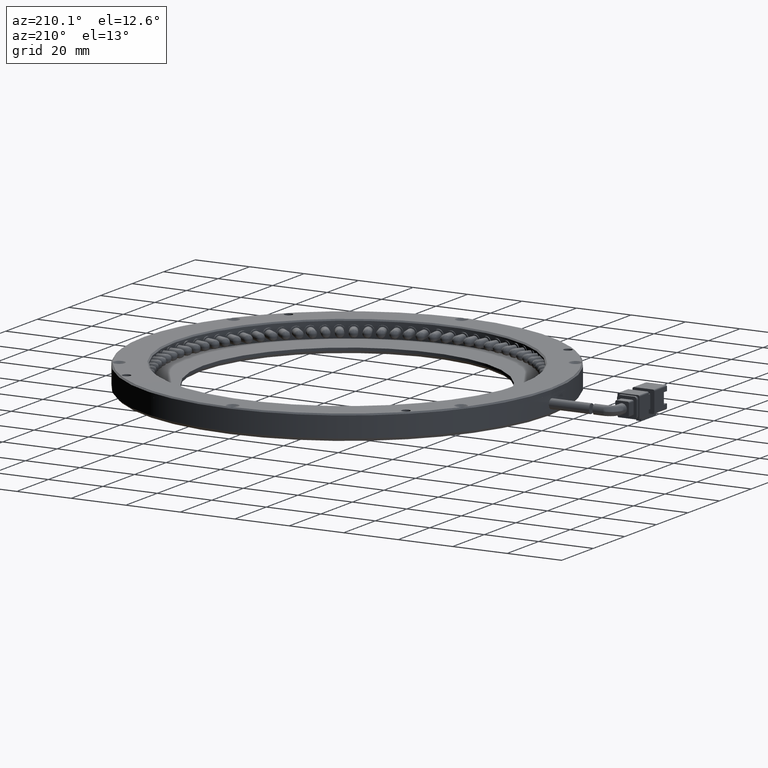
[diagram: clean part render]
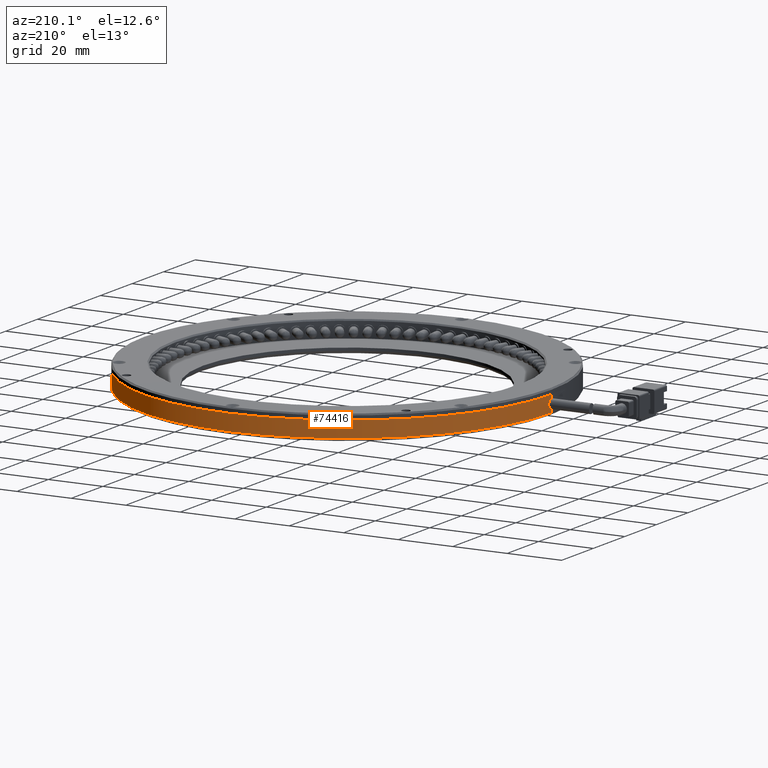
[diagram: same view with one face highlighted and labeled with its STEP entity id]
A machine part, auxiliary view. The second image highlights one B-rep face of the part: STEP entity #74416.
In plain terms, the highlighted cylindrical surface (partial cylindrical patch) has radius 75 mm, axis along (-0, -0, -1).
Its self-contained STEP definition (entity closure, byte-faithful):
#114 = B_SPLINE_CURVE_WITH_KNOTS ( 'NONE', 3,
 ( #40486, #46696, #10224, #52785, #16317, #58912, #22478, #65022, #28561, #71138 ),
 .UNSPECIFIED., .F., .F.,
 ( 4, 2, 2, 2, 4 ),
 ( 0.0000000000000000000, 0.0001630378163895703000, 0.0003260756327791406100, 0.0004891134491687109100, 0.0006521512655582812100 ),
 .UNSPECIFIED. ) ;
#164 = CARTESIAN_POINT ( 'NONE',  ( 85.81477244671998500, 2.165446640857760800, -0.6187330739377201500 ) ) ;
#489 = CARTESIAN_POINT ( 'NONE',  ( 85.73800014214573700, 4.653285474603203300, 1.128122048712245000 ) ) ;
#563 = CARTESIAN_POINT ( 'NONE',  ( 85.53827750510325200, 7.618272620792669000, -0.3127182383159786700 ) ) ;
#573 = ORIENTED_EDGE ( 'NONE', *, *, #14319, .T. ) ;
#737 = EDGE_CURVE ( 'NONE', #58135, #10843, #65007, .T. ) ;
#772 = CARTESIAN_POINT ( 'NONE',  ( 85.71165016811922000, 5.170246532691408000, 1.916150646992546400 ) ) ;
#856 = CARTESIAN_POINT ( 'NONE',  ( -64.17760152284266400, 1.211546039022340900, -1.250000000000065300 ) ) ;
#922 = EDGE_LOOP ( 'NONE', ( #63109, #7438, #54793, #67659, #46161, #46583, #573, #60451, #67471, #56180 ) ) ;
#1013 = CARTESIAN_POINT ( 'NONE',  ( 85.70550861730686200, 5.282591283686916700, -0.6652447018446749900 ) ) ;
#1101 = DIRECTION ( 'NONE',  ( -0.0000000000000000000, -0.0000000000000000000, -1.000000000000000000 ) ) ;
#1107 = CARTESIAN_POINT ( 'NONE',  ( -64.15718569520919300, 2.845784040264265800, 0.2705739323350450600 ) ) ;
#1305 = CARTESIAN_POINT ( 'NONE',  ( 10.82239847715735200, 1.095939086294420100, 1.881266926062272500 ) ) ;
#1360 = CARTESIAN_POINT ( 'NONE',  ( -64.17649974751833500, 1.554441329128374300, 2.204396376914379700 ) ) ;
#1553 = DIRECTION ( 'NONE',  ( 0.0000000000000000000, 0.0000000000000000000, 1.000000000000000000 ) ) ;
#1980 = ORIENTED_EDGE ( 'NONE', *, *, #59055, .T. ) ;
#2165 = CARTESIAN_POINT ( 'NONE',  ( 85.55198300067344500, 7.459051292020888000, -0.6652447018446611100 ) ) ;
#2300 = AXIS2_PLACEMENT_3D ( 'NONE', #50641, #14158, #56712 ) ;
#2699 = CARTESIAN_POINT ( 'NONE',  ( 85.68236644346437500, 5.676920768953632300, 1.150557925380190300 ) ) ;
#2800 = CARTESIAN_POINT ( 'NONE',  ( 85.55198300067344500, 7.459051292020880900, 0.8696390190855857200 ) ) ;
#2942 = B_SPLINE_CURVE_WITH_KNOTS ( 'NONE', 3,
 ( #30748, #48379, #6619, #49165, #12677, #55278, #18840, #61404 ),
 .UNSPECIFIED., .F., .F.,
 ( 4, 2, 2, 4 ),
 ( 0.0000000000000000000, 0.0002631081875671897100, 0.0005262163751343794300, 0.001052432750268758900 ),
 .UNSPECIFIED. ) ;
#2995 = LINE ( 'NONE', #25401, #63893 ) ;
#3256 = ORIENTED_EDGE ( 'NONE', *, *, #23365, .T. ) ;
#3352 = AXIS2_PLACEMENT_3D ( 'NONE', #53502, #17049, #59615 ) ;
#3556 = CARTESIAN_POINT ( 'NONE',  ( 85.79983291384401400, 2.935592665736297800, 3.499999999999955600 ) ) ;
#3559 = CARTESIAN_POINT ( 'NONE',  ( 85.58624266238298600, 7.043007074514176400, 1.178834870566936500 ) ) ;
#3994 = VERTEX_POINT ( 'NONE', #2165 ) ;
#4004 = CARTESIAN_POINT ( 'NONE',  ( 85.62597265482789100, 6.520449776774204200, 1.335416441849464700 ) ) ;
#4082 = CARTESIAN_POINT ( 'NONE',  ( 85.75446820164101800, 4.287722699461308000, -0.2196701746464283800 ) ) ;
#4192 = CARTESIAN_POINT ( 'NONE',  ( 85.48282974726120600, 8.225442838419969100, -0.4546932816000492900 ) ) ;
#4331 = EDGE_CURVE ( 'NONE', #10813, #69336, #67318, .T. ) ;
#4558 = AXIS2_PLACEMENT_3D ( 'NONE', #46893, #71340, #24002 ) ;
#4848 = CARTESIAN_POINT ( 'NONE',  ( 85.74109641400249900, 4.587171939469059500, 0.4916234151908922500 ) ) ;
#4944 = ORIENTED_EDGE ( 'NONE', *, *, #46761, .T. ) ;
#5084 = CARTESIAN_POINT ( 'NONE',  ( 85.71009021527021300, 5.200323804442635200, -0.3207454181537956500 ) ) ;
#5101 = EDGE_CURVE ( 'NONE', #71255, #6256, #65480, .T. ) ;
#5144 = CARTESIAN_POINT ( 'NONE',  ( 85.82039042256055000, 1.644759783096986900, -0.6187330739377242500 ) ) ;
#5192 = ORIENTED_EDGE ( 'NONE', *, *, #68583, .T. ) ;
#5295 = CARTESIAN_POINT ( 'NONE',  ( 85.52036745981722300, 7.820080096712868700, 0.2467743657567214600 ) ) ;
#5364 = VERTEX_POINT ( 'NONE', #77075 ) ;
#5440 = ORIENTED_EDGE ( 'NONE', *, *, #51326, .F. ) ;
#5558 = CARTESIAN_POINT ( 'NONE',  ( 85.58342432324457100, 7.078349063358267300, 1.412979274396820600 ) ) ;
#6256 = VERTEX_POINT ( 'NONE', #32475 ) ;
#6448 = ORIENTED_EDGE ( 'NONE', *, *, #41639, .F. ) ;
#6508 = CARTESIAN_POINT ( 'NONE',  ( 85.62634100142418000, 6.515365515925713800, 1.230104135364652700 ) ) ;
#6511 = VERTEX_POINT ( 'NONE', #5144 ) ;
#6619 = CARTESIAN_POINT ( 'NONE',  ( 85.69374825315824800, 5.487746691875480000, -0.3201846108358007400 ) ) ;
#6647 = CARTESIAN_POINT ( 'NONE',  ( 85.76380396376370600, 4.060023050997011200, 0.7848510675663845600 ) ) ;
#6652 = CARTESIAN_POINT ( 'NONE',  ( 85.74084618631185600, 4.592577370694245400, 0.8144882120009927500 ) ) ;
#6717 = CARTESIAN_POINT ( 'NONE',  ( 85.52422649467446500, 7.777217999458087200, -0.2293130562746435500 ) ) ;
#6864 = VERTEX_POINT ( 'NONE', #46443 ) ;
#6990 = LINE ( 'NONE', #3556, #23139 ) ;
#7248 = CARTESIAN_POINT ( 'NONE',  ( -64.15744734107639100, 2.834679593530885700, 0.7288483726947201400 ) ) ;
#7438 = ORIENTED_EDGE ( 'NONE', *, *, #50314, .T. ) ;
#7449 = DIRECTION ( 'NONE',  ( -3.099835203338822200E-013, 1.000000000000000000, 6.805898437415671900E-015 ) ) ;
#7484 = VERTEX_POINT ( 'NONE', #11196 ) ;
#7511 = CARTESIAN_POINT ( 'NONE',  ( -64.17760152284266400, 1.095939086294413800, 2.249999999999931600 ) ) ;
#7753 = DIRECTION ( 'NONE',  ( -0.0000000000000000000, -0.0000000000000000000, -1.000000000000000000 ) ) ;
#7919 = CARTESIAN_POINT ( 'NONE',  ( 85.68150632212675100, 5.690933390452384400, 1.090569251643721100 ) ) ;
#8038 = EDGE_CURVE ( 'NONE', #78612, #52757, #48639, .T. ) ;
#8232 = VERTEX_POINT ( 'NONE', #22075 ) ;
#8334 = CARTESIAN_POINT ( 'NONE',  ( 85.51475269276178900, 7.882117814465390300, 0.04405762373675878300 ) ) ;
#8799 = CARTESIAN_POINT ( 'NONE',  ( 85.68649360600751700, 5.609017959873675400, 1.319685156415308900 ) ) ;
#9039 = B_SPLINE_CURVE_WITH_KNOTS ( 'NONE', 3,
 ( #43127, #856, #49541, #13064, #55633, #19228, #61792, #25320, #67858, #31410, #73965, #37525, #1107, #43673, #7248, #49785, #13334, #55903, #19477, #62029, #25590, #68110, #31664, #74234, #37785, #1360, #43936, #7511 ),
 .UNSPECIFIED., .F., .F.,
 ( 4, 2, 2, 2, 2, 2, 2, 2, 2, 2, 2, 2, 2, 4 ),
 ( 0.005470357491635789700, 0.005812254888678368100, 0.006154152285720946400, 0.006496049682763525700, 0.006837947079806104000, 0.007521741873891260800, 0.008205536667976416600, 0.008547434065018996700, 0.008889331462061573300, 0.009231228859104153400, 0.009573126256146730100, 0.009915023653189308400, 0.01025692105023188700, 0.01094071584431704000 ),
 .UNSPECIFIED. ) ;
#9140 = EDGE_CURVE ( 'NONE', #17227, #55969, #2995, .T. ) ;
#9324 = ORIENTED_EDGE ( 'NONE', *, *, #44883, .T. ) ;
#9366 = EDGE_CURVE ( 'NONE', #49303, #45672, #23539, .T. ) ;
#9451 = CARTESIAN_POINT ( 'NONE',  ( 85.79176449676579400, 3.239337933448679200, 3.499999999999948900 ) ) ;
#9579 = CARTESIAN_POINT ( 'NONE',  ( 85.54793157312538200, 7.507465081779962200, 1.912926396741569300 ) ) ;
#9649 = CARTESIAN_POINT ( 'NONE',  ( 85.58216645370347900, 7.094070326340913700, 1.035373196568201100 ) ) ;
#9963 = EDGE_CURVE ( 'NONE', #69026, #3994, #72444, .T. ) ;
#10167 = CARTESIAN_POINT ( 'NONE',  ( 85.75921642377402100, 4.174017002276131400, -0.005171606683428008200 ) ) ;
#10224 = CARTESIAN_POINT ( 'NONE',  ( 85.52081281393418500, 7.815127352819761300, 1.241048167901908700 ) ) ;
#10274 = CARTESIAN_POINT ( 'NONE',  ( 85.51166927441561000, 7.916923086171308900, -0.6142956655598131900 ) ) ;
#10359 = CARTESIAN_POINT ( 'NONE',  ( 85.68447640247100600, 5.643783523934319000, 1.836020528911882300 ) ) ;
#10452 = CARTESIAN_POINT ( 'NONE',  ( 85.51410503318128100, 7.890077489507759400, 0.7441503104487929800 ) ) ;
#10506 = CARTESIAN_POINT ( 'NONE',  ( 85.51769994288605400, 7.849600237396815700, 1.137080879550713900 ) ) ;
#10731 = EDGE_LOOP ( 'NONE', ( #35460, #27213, #66482, #1980, #72557, #31885, #59051, #3256, #13104, #38547, #5192, #58852, #27510, #37329 ) ) ;
#10813 = VERTEX_POINT ( 'NONE', #16647 ) ;
#10843 = VERTEX_POINT ( 'NONE', #53394 ) ;
#11196 = CARTESIAN_POINT ( 'NONE',  ( 85.55657981451788900, 7.404832795536414400, 1.555685530713489800 ) ) ;
#11200 = CARTESIAN_POINT ( 'NONE',  ( -64.17760152284266400, 1.095939086294413800, 2.249999999999931600 ) ) ;
#11381 = CARTESIAN_POINT ( 'NONE',  ( 85.55657981451788900, 7.404832795536414400, 1.555685530713489800 ) ) ;
#11382 = CARTESIAN_POINT ( 'NONE',  ( 85.53569154040435800, 7.648174592361531400, 0.3789055607339342200 ) ) ;
#11490 = CIRCLE ( 'NONE', #3352, 75.00000000000001400 ) ;
#11640 = CARTESIAN_POINT ( 'NONE',  ( 85.58606086792164500, 7.045291019548590900, 1.276991541258582400 ) ) ;
#11657 = CARTESIAN_POINT ( 'NONE',  ( 85.58350968957468300, 7.078015308578138800, -0.6356882467442865900 ) ) ;
#11890 = VERTEX_POINT ( 'NONE', #8334 ) ;
#12677 = CARTESIAN_POINT ( 'NONE',  ( 85.67899586537868100, 5.732178499505995900, -0.2186353966747918700 ) ) ;
#12702 = CARTESIAN_POINT ( 'NONE',  ( 85.76408291473212800, 4.052953401268913700, 0.6254529725739557100 ) ) ;
#12711 = CARTESIAN_POINT ( 'NONE',  ( 85.74122283623991300, 4.584456916682782400, 0.6021971586204419900 ) ) ;
#12768 = CARTESIAN_POINT ( 'NONE',  ( 85.51588529690991400, 7.869688996189457200, -0.07597708798656095700 ) ) ;
#12937 = VERTEX_POINT ( 'NONE', #10506 ) ;
#13064 = CARTESIAN_POINT ( 'NONE',  ( -64.17631727402043400, 1.548862813064827400, -1.194213056580401900 ) ) ;
#13104 = ORIENTED_EDGE ( 'NONE', *, *, #54580, .T. ) ;
#13334 = CARTESIAN_POINT ( 'NONE',  ( -64.15921619028435400, 2.757076887694246600, 1.062369380701858200 ) ) ;
#13413 = CIRCLE ( 'NONE', #67202, 75.00000000000001400 ) ;
#13601 = CARTESIAN_POINT ( 'NONE',  ( 85.65214963128302400, 6.146517489965628300, 3.500000000000011100 ) ) ;
#13871 = CARTESIAN_POINT ( 'NONE',  ( 85.56333837768777100, 7.325270542858255900, 0.4473735952365120400 ) ) ;
#14058 = CARTESIAN_POINT ( 'NONE',  ( 10.82239847715735200, 1.095939086294420100, 1.532429716759989600 ) ) ;
#14158 = DIRECTION ( 'NONE',  ( -0.0000000000000000000, 6.804568988770635500E-015, -1.000000000000000000 ) ) ;
#14319 = EDGE_CURVE ( 'NONE', #8232, #24237, #68448, .T. ) ;
#14354 = CARTESIAN_POINT ( 'NONE',  ( 10.82239847715735200, 1.095939086294420100, -0.6187330739377263600 ) ) ;
#14393 = CARTESIAN_POINT ( 'NONE',  ( 85.57246421834504700, 7.214710487214031100, 0.4724769187422971400 ) ) ;
#14640 = EDGE_CURVE ( 'NONE', #48084, #60283, #17371, .T. ) ;
#14923 = CARTESIAN_POINT ( 'NONE',  ( 85.69339446705160400, 5.493177239584282400, 1.463997073509666300 ) ) ;
#15248 = CARTESIAN_POINT ( 'NONE',  ( 85.58568070910276000, 7.050107053887177100, 1.126573936929329500 ) ) ;
#15533 = VECTOR ( 'NONE', #1553, 1000.000000000000000 ) ;
#15682 = CARTESIAN_POINT ( 'NONE',  ( 85.51887240053424900, 7.837510290975521900, 1.838374444428891200 ) ) ;
#15756 = CARTESIAN_POINT ( 'NONE',  ( 85.56892395853370200, 7.257438082710971900, 0.9112647017991184500 ) ) ;
#16008 = CARTESIAN_POINT ( 'NONE',  ( 85.71046638832190500, 5.191947452107305200, -0.6652447018446755500 ) ) ;
#16168 = CARTESIAN_POINT ( 'NONE',  ( 10.82239847715735200, 1.095939086294420100, 1.137080879550663500 ) ) ;
#16197 = CARTESIAN_POINT ( 'NONE',  ( 85.61782358324288100, 6.631867412764506800, 1.628842765550401000 ) ) ;
#16261 = CARTESIAN_POINT ( 'NONE',  ( 85.76299132774001100, 4.080810903052869400, 0.3018867300238762300 ) ) ;
#16317 = CARTESIAN_POINT ( 'NONE',  ( 85.52787608819210200, 7.736197853643506800, 1.385067924659423500 ) ) ;
#16379 = CARTESIAN_POINT ( 'NONE',  ( 85.54212341058968100, 7.574844169265256600, -0.6652447018446604500 ) ) ;
#16465 = CARTESIAN_POINT ( 'NONE',  ( 85.66545761522813500, 5.946270426808838200, 1.633155076523562300 ) ) ;
#16564 = CARTESIAN_POINT ( 'NONE',  ( 85.48709745703423800, 8.180542651453643900, 0.5768355480302569400 ) ) ;
#16647 = CARTESIAN_POINT ( 'NONE',  ( -64.17760152284266400, 1.095939086294420100, -1.250000000000064400 ) ) ;
#17049 = DIRECTION ( 'NONE',  ( 0.0000000000000000000, 0.0000000000000000000, -1.000000000000000000 ) ) ;
#17227 = VERTEX_POINT ( 'NONE', #62798 ) ;
#17371 = CIRCLE ( 'NONE', #41765, 75.00000000000001400 ) ;
#17497 = CARTESIAN_POINT ( 'NONE',  ( 85.55382189115601900, 7.437417976715300600, 0.4277785539693462800 ) ) ;
#17570 = B_SPLINE_CURVE_WITH_KNOTS ( 'NONE', 3,
 ( #67768, #43293, #49447, #31312, #73863, #37431, #1013, #43570 ),
 .UNSPECIFIED., .F., .F.,
 ( 4, 2, 2, 4 ),
 ( 0.0000000000000000000, 0.0005431440541593563200, 0.0008147160812390319400, 0.001086288108318707700 ),
 .UNSPECIFIED. ) ;
#17776 = CARTESIAN_POINT ( 'NONE',  ( 85.60436376792317500, 6.811285033781914900, -0.5276803122504228900 ) ) ;
#17854 = ORIENTED_EDGE ( 'NONE', *, *, #36163, .F. ) ;
#18096 = VECTOR ( 'NONE', #33892, 1000.000000000000000 ) ;
#18104 = DIRECTION ( 'NONE',  ( -0.0000000000000000000, 9.009841873820301300E-015, -1.000000000000000000 ) ) ;
#18580 = CARTESIAN_POINT ( 'NONE',  ( 85.70987398692894000, 5.202764109759980800, 1.555685530713472500 ) ) ;
#18732 = CARTESIAN_POINT ( 'NONE',  ( 85.61327012385648100, 6.695071809826015600, -0.05342082314213781500 ) ) ;
#18840 = CARTESIAN_POINT ( 'NONE',  ( 85.65853093038289500, 6.051971680452366400, 0.08106064510655296200 ) ) ;
#18871 = CARTESIAN_POINT ( 'NONE',  ( 85.76302581473748900, 4.079917948819633500, 0.9414665052236703700 ) ) ;
#18873 = VERTEX_POINT ( 'NONE', #26105 ) ;
#18944 = CARTESIAN_POINT ( 'NONE',  ( 85.51475269276178900, 7.882117814465390300, 0.04405762373675878300 ) ) ;
#19228 = CARTESIAN_POINT ( 'NONE',  ( -64.17366216220651200, 1.871900513010396100, -1.072748805248875400 ) ) ;
#19290 = EDGE_CURVE ( 'NONE', #52757, #45473, #17570, .T. ) ;
#19477 = CARTESIAN_POINT ( 'NONE',  ( -64.16224778660425400, 2.614765466892625200, 1.376736934311823600 ) ) ;
#20039 = CIRCLE ( 'NONE', #39807, 75.00000000000001400 ) ;
#20220 = DIRECTION ( 'NONE',  ( -1.429874737131816000E-013, -1.000000000000000000, -6.756747938929662100E-015 ) ) ;
#20225 = DIRECTION ( 'NONE',  ( 0.0000000000000000000, 0.0000000000000000000, 1.000000000000000000 ) ) ;
#20502 = DIRECTION ( 'NONE',  ( -1.527713141176907900E-013, -1.000000000000000000, -6.804452834519024300E-015 ) ) ;
#20539 = CARTESIAN_POINT ( 'NONE',  ( 85.59812002527483800, 6.892545738829116300, 0.5864729204963087300 ) ) ;
#20626 = DIRECTION ( 'NONE',  ( -0.0000000000000000000, -0.0000000000000000000, -1.000000000000000000 ) ) ;
#21092 = CARTESIAN_POINT ( 'NONE',  ( 85.70297478753252600, 5.327081371156655400, 1.546056791929100400 ) ) ;
#21847 = CARTESIAN_POINT ( 'NONE',  ( 85.49269615595950700, 8.121233534810762900, 1.650374865286688500 ) ) ;
#21921 = CARTESIAN_POINT ( 'NONE',  ( 85.55198300067344500, 7.459051292020880900, 0.8696390190855857200 ) ) ;
#22075 = CARTESIAN_POINT ( 'NONE',  ( 85.74122283623991300, 4.584456916682782400, 0.6021971586204419900 ) ) ;
#22085 = CARTESIAN_POINT ( 'NONE',  ( 85.69825760274845500, 5.410950155728764700, 1.901112523295561200 ) ) ;
#22298 = DIRECTION ( 'NONE',  ( 1.527713141176907900E-013, -1.000000000000000000, -6.953349932873700500E-015 ) ) ;
#22330 = CARTESIAN_POINT ( 'NONE',  ( 85.59918659522907100, 6.878641428093961200, 1.825291350577643100 ) ) ;
#22408 = CARTESIAN_POINT ( 'NONE',  ( 85.76408291473212800, 4.052953401268913700, 0.6254529725739557100 ) ) ;
#22478 = CARTESIAN_POINT ( 'NONE',  ( 85.53851502967748400, 7.615482848410752400, 1.498635839079678300 ) ) ;
#22584 = FACE_OUTER_BOUND ( 'NONE', #74444, .T. ) ;
#22622 = CARTESIAN_POINT ( 'NONE',  ( 85.65278493696352800, 6.137422005559373300, 1.324651496669644300 ) ) ;
#22712 = CARTESIAN_POINT ( 'NONE',  ( 85.46735494845359000, 8.385248726812310600, 0.3052451313797247000 ) ) ;
#22966 = CARTESIAN_POINT ( 'NONE',  ( 85.63025414252011600, 6.461079415330958800, 0.2417320423413817600 ) ) ;
#22971 = CARTESIAN_POINT ( 'NONE',  ( 85.55749214440480400, 7.394016137883291200, 1.916150646992560400 ) ) ;
#23139 = VECTOR ( 'NONE', #27461, 1000.000000000000000 ) ;
#23365 = EDGE_CURVE ( 'NONE', #18873, #56909, #25660, .T. ) ;
#23539 = B_SPLINE_CURVE_WITH_KNOTS ( 'NONE', 3,
 ( #52158, #9579, #39867, #15682, #58277, #21847, #64385, #27928, #70489, #34027 ),
 .UNSPECIFIED., .F., .F.,
 ( 4, 2, 2, 2, 4 ),
 ( 0.0000000000000000000, 0.0003388901469546860000, 0.0006777802939093746000, 0.001016670440864063000, 0.001355560587818751800 ),
 .UNSPECIFIED. ) ;
#23895 = CARTESIAN_POINT ( 'NONE',  ( 85.62143490545028600, 6.583157864560703800, -0.3495414962016575900 ) ) ;
#24002 = DIRECTION ( 'NONE',  ( -1.000000000000000000, 0.0000000000000000000, 0.0000000000000000000 ) ) ;
#24237 = VERTEX_POINT ( 'NONE', #29873 ) ;
#24477 = FACE_BOUND ( 'NONE', #10731, .T. ) ;
#24773 = CARTESIAN_POINT ( 'NONE',  ( 85.55339383942475700, 7.442742274676379400, -0.3396633064957795300 ) ) ;
#24847 = CARTESIAN_POINT ( 'NONE',  ( 85.58911290672195100, 7.008906390167959800, -0.2704685028220033500 ) ) ;
#24866 = EDGE_CURVE ( 'NONE', #78418, #8232, #40415, .T. ) ;
#24926 = EDGE_CURVE ( 'NONE', #6511, #48084, #62198, .T. ) ;
#24973 = CARTESIAN_POINT ( 'NONE',  ( 85.75694861392193500, 4.230089149045356000, 1.395247904257803000 ) ) ;
#25303 = CARTESIAN_POINT ( 'NONE',  ( 85.65214963128302400, 6.146517489965676300, -0.2466400506818331500 ) ) ;
#25320 = CARTESIAN_POINT ( 'NONE',  ( -64.17007602798992100, 2.162623009860407100, -0.8920349465196285600 ) ) ;
#25401 = CARTESIAN_POINT ( 'NONE',  ( 85.77545153947657800, 3.749208133556743800, 3.499999999999952000 ) ) ;
#25590 = CARTESIAN_POINT ( 'NONE',  ( -64.16603006302712200, 2.415880627403558000, 1.654812266917435200 ) ) ;
#25660 = B_SPLINE_CURVE_WITH_KNOTS ( 'NONE', 3,
 ( #56678, #13871, #14393, #56949, #20539, #63068, #26646, #69168, #32710, #75288 ),
 .UNSPECIFIED., .F., .F.,
 ( 4, 2, 2, 2, 4 ),
 ( 0.0000000000000000000, 0.0003405568085651301000, 0.0006811136171302602100, 0.001021670425695390300, 0.001362227234260520400 ),
 .UNSPECIFIED. ) ;
#25711 = EDGE_CURVE ( 'NONE', #26147, #69038, #53601, .T. ) ;
#26047 = VECTOR ( 'NONE', #20225, 1000.000000000000000 ) ;
#26049 = EDGE_CURVE ( 'NONE', #45701, #38571, #26568, .T. ) ;
#26105 = CARTESIAN_POINT ( 'NONE',  ( 85.55382189115601900, 7.437417976715300600, 0.4277785539693462800 ) ) ;
#26147 = VERTEX_POINT ( 'NONE', #70497 ) ;
#26155 = CARTESIAN_POINT ( 'NONE',  ( 85.65214963128302400, 6.146517489965628300, 0.2301041353646483800 ) ) ;
#26474 = DIRECTION ( 'NONE',  ( -0.0000000000000000000, -0.0000000000000000000, -1.000000000000000000 ) ) ;
#26544 = CARTESIAN_POINT ( 'NONE',  ( 10.82239847715735200, 1.095939086294420100, -0.6187330739377272500 ) ) ;
#26568 = LINE ( 'NONE', #37779, #73171 ) ;
#26646 = CARTESIAN_POINT ( 'NONE',  ( 85.61892491159537100, 6.617014109375034500, 0.7923754904449682400 ) ) ;
#26969 = ORIENTED_EDGE ( 'NONE', *, *, #63890, .T. ) ;
#26971 = ORIENTED_EDGE ( 'NONE', *, *, #48463, .T. ) ;
#27139 = CARTESIAN_POINT ( 'NONE',  ( 85.70987398692894000, 5.202764109759980800, 1.555685530713472500 ) ) ;
#27213 = ORIENTED_EDGE ( 'NONE', *, *, #9963, .T. ) ;
#27382 = B_SPLINE_CURVE_WITH_KNOTS ( 'NONE', 3,
 ( #34277, #4004, #52671, #16197, #58774, #22330, #64882, #28429, #70993, #34539 ),
 .UNSPECIFIED., .F., .F.,
 ( 4, 2, 2, 2, 4 ),
 ( 0.0000000000000000000, 0.0003112414288711303600, 0.0006224828577422607300, 0.0009337242866133911500, 0.001244965715484521500 ),
 .UNSPECIFIED. ) ;
#27461 = DIRECTION ( 'NONE',  ( -0.0000000000000000000, -0.0000000000000000000, -1.000000000000000000 ) ) ;
#27510 = ORIENTED_EDGE ( 'NONE', *, *, #65310, .T. ) ;
#27524 = CARTESIAN_POINT ( 'NONE',  ( 85.76408291473212800, 4.052953401268913700, 0.6254529725739557100 ) ) ;
#27928 = CARTESIAN_POINT ( 'NONE',  ( 85.47593712001200600, 8.296763544746991000, 1.359307089440018100 ) ) ;
#28235 = CARTESIAN_POINT ( 'NONE',  ( 85.72736683940286200, 4.873277809031983500, -0.6288183887472862400 ) ) ;
#28429 = CARTESIAN_POINT ( 'NONE',  ( 85.57499151202786400, 7.183662032832719600, 1.905729125419449100 ) ) ;
#28561 = CARTESIAN_POINT ( 'NONE',  ( 85.55190220552968600, 7.460243029796309600, 1.553691176691353900 ) ) ;
#28692 = CARTESIAN_POINT ( 'NONE',  ( 85.64846584938456400, 6.200803590560445500, 1.090569251643724400 ) ) ;
#28784 = CARTESIAN_POINT ( 'NONE',  ( 85.46454834682926100, 8.413688933989346800, 0.07894134466700925000 ) ) ;
#29223 = CARTESIAN_POINT ( 'NONE',  ( 85.73831648915870600, 4.646407030796770400, 0.1678306298991276100 ) ) ;
#29435 = CARTESIAN_POINT ( 'NONE',  ( 85.51475269276180300, 7.882117814465386700, 0.09833294523471444700 ) ) ;
#29831 = VERTEX_POINT ( 'NONE', #27524 ) ;
#29873 = CARTESIAN_POINT ( 'NONE',  ( 85.70384475185316800, 5.311268706839667800, -0.3280353995190593000 ) ) ;
#29947 = CARTESIAN_POINT ( 'NONE',  ( 85.63025414252013000, 6.461079415330900100, -0.2001284227748541300 ) ) ;
#30080 = EDGE_CURVE ( 'NONE', #40221, #76967, #34344, .T. ) ;
#30310 = CARTESIAN_POINT ( 'NONE',  ( 10.82239847715735200, 1.095939086294420100, 3.499999999999937400 ) ) ;
#30427 = VERTEX_POINT ( 'NONE', #39901 ) ;
#30512 = CARTESIAN_POINT ( 'NONE',  ( 85.71573886229981600, 5.095818791126586900, 1.551562638756804200 ) ) ;
#30591 = VECTOR ( 'NONE', #26474, 1000.000000000000000 ) ;
#30748 = CARTESIAN_POINT ( 'NONE',  ( 85.70384475185316800, 5.311268706839667800, -0.3280353995190593000 ) ) ;
#30781 = CARTESIAN_POINT ( 'NONE',  ( 85.72132731953095700, 4.989299713287124400, 1.524176576279314000 ) ) ;
#30910 = CARTESIAN_POINT ( 'NONE',  ( 85.55840858489298700, 7.383131876120323500, -0.3396633064957805800 ) ) ;
#31049 = CARTESIAN_POINT ( 'NONE',  ( 85.74258159485586400, 4.558276619965700300, 1.746677760756298200 ) ) ;
#31098 = CYLINDRICAL_SURFACE ( 'NONE', #4558, 75.00000000000001400 ) ;
#31312 = CARTESIAN_POINT ( 'NONE',  ( 85.68481646236915600, 5.637461681645296700, -0.6067286376974057000 ) ) ;
#31410 = CARTESIAN_POINT ( 'NONE',  ( -64.16472828938128700, 2.494826370910634400, -0.5759807946237031100 ) ) ;
#31515 = EDGE_CURVE ( 'NONE', #12937, #7484, #114, .T. ) ;
#31664 = CARTESIAN_POINT ( 'NONE',  ( -64.17005402205187200, 2.164134769224698400, 1.890845348924354000 ) ) ;
#31885 = ORIENTED_EDGE ( 'NONE', *, *, #64862, .T. ) ;
#32192 = EDGE_CURVE ( 'NONE', #55969, #32869, #35377, .T. ) ;
#32475 = CARTESIAN_POINT ( 'NONE',  ( 85.64846584938456400, 6.200803590560445500, 1.090569251643724400 ) ) ;
#32599 = DIRECTION ( 'NONE',  ( 0.0000000000000000000, -1.000000000000000000, -6.662783750647585300E-015 ) ) ;
#32710 = CARTESIAN_POINT ( 'NONE',  ( 85.62734647348361200, 6.501487059391680000, 1.115523598219718000 ) ) ;
#32869 = VERTEX_POINT ( 'NONE', #69316 ) ;
#33892 = DIRECTION ( 'NONE',  ( 0.0000000000000000000, 0.0000000000000000000, 1.000000000000000000 ) ) ;
#34022 = B_SPLINE_CURVE_WITH_KNOTS ( 'NONE', 3,
 ( #12702, #6647, #18871, #61427, #24973, #67516, #31049, #73598, #37200, #772 ),
 .UNSPECIFIED., .F., .F.,
 ( 4, 2, 2, 2, 4 ),
 ( 1.301042606982605500E-018, 0.0004718343931649071800, 0.0009436687863298130500, 0.001415503179494718800, 0.001887337572659624800 ),
 .UNSPECIFIED. ) ;
#34027 = CARTESIAN_POINT ( 'NONE',  ( 85.47090221431160700, 8.348586175741669300, 1.137080879550714100 ) ) ;
#34215 = ORIENTED_EDGE ( 'NONE', *, *, #26049, .T. ) ;
#34247 = LINE ( 'NONE', #9451, #18096 ) ;
#34277 = CARTESIAN_POINT ( 'NONE',  ( 85.62634100142418000, 6.515365515925713800, 1.230104135364652700 ) ) ;
#34344 = B_SPLINE_CURVE_WITH_KNOTS ( 'NONE', 3,
 ( #61308, #55173, #18732, #24847, #67396, #30910 ),
 .UNSPECIFIED., .F., .F.,
 ( 4, 2, 4 ),
 ( 0.0000000000000000000, 0.0005626812746980399100, 0.001125362549396079800 ),
 .UNSPECIFIED. ) ;
#34348 = CARTESIAN_POINT ( 'NONE',  ( 85.74156195678047300, 4.577771682309554900, -0.4965976644851552400 ) ) ;
#34539 = CARTESIAN_POINT ( 'NONE',  ( 85.55749214440480400, 7.394016137883291200, 1.916150646992560400 ) ) ;
#35077 = ORIENTED_EDGE ( 'NONE', *, *, #4331, .F. ) ;
#35219 = CARTESIAN_POINT ( 'NONE',  ( 10.82239847715735200, 1.095939086294420100, 1.881266926062278500 ) ) ;
#35338 = CARTESIAN_POINT ( 'NONE',  ( 85.73049999876060700, 4.808097012297963600, -0.1226339608918013000 ) ) ;
#35377 = CIRCLE ( 'NONE', #62632, 75.00000000000001400 ) ;
#35460 = ORIENTED_EDGE ( 'NONE', *, *, #62275, .T. ) ;
#35562 = CARTESIAN_POINT ( 'NONE',  ( 85.51475269276178900, 7.882117814465390300, 0.04405762373675878300 ) ) ;
#35829 = CARTESIAN_POINT ( 'NONE',  ( 85.57184834604321100, 7.221443879377149600, 1.530630557235648000 ) ) ;
#35836 = EDGE_CURVE ( 'NONE', #6256, #45908, #43007, .T. ) ;
#35838 = CARTESIAN_POINT ( 'NONE',  ( 85.56019737072298900, 7.362580187775525300, -0.6705929790179664400 ) ) ;
#36163 = EDGE_CURVE ( 'NONE', #69336, #66220, #11490, .T. ) ;
#36461 = DIRECTION ( 'NONE',  ( -1.000000000000000000, 0.0000000000000000000, 0.0000000000000000000 ) ) ;
#36932 = CARTESIAN_POINT ( 'NONE',  ( 85.73361178171110500, 4.744528867741007800, 1.319627264999895000 ) ) ;
#36995 = CARTESIAN_POINT ( 'NONE',  ( 85.54834886660899000, 7.501854481231997200, -0.3356100839878791200 ) ) ;
#37200 = CARTESIAN_POINT ( 'NONE',  ( 85.72037207097453400, 5.009930506777845200, 1.905631102326019700 ) ) ;
#37329 = ORIENTED_EDGE ( 'NONE', *, *, #25711, .T. ) ;
#37431 = CARTESIAN_POINT ( 'NONE',  ( 85.70043691755242300, 5.372293763320101300, -0.6590222359865015600 ) ) ;
#37525 = CARTESIAN_POINT ( 'NONE',  ( -64.15829563789961300, 2.799797534432990600, 0.04030926949232197000 ) ) ;
#37779 = CARTESIAN_POINT ( 'NONE',  ( 85.81477244671998500, 2.165446640857727500, 3.499999999999945800 ) ) ;
#37785 = CARTESIAN_POINT ( 'NONE',  ( -64.17365622032254200, 1.872482464408237000, 2.072467236856808900 ) ) ;
#37874 = CARTESIAN_POINT ( 'NONE',  ( -64.17760152284266400, 1.095939086294420100, 3.499999999999937400 ) ) ;
#38050 = EDGE_CURVE ( 'NONE', #65834, #17227, #54799, .T. ) ;
#38234 = CARTESIAN_POINT ( 'NONE',  ( 85.82039042256055000, 1.644759783096986900, 3.499999999999940900 ) ) ;
#38534 = CARTESIAN_POINT ( 'NONE',  ( 85.77545153947657800, 3.749208133556766900, -0.6187330739377082700 ) ) ;
#38547 = ORIENTED_EDGE ( 'NONE', *, *, #9366, .T. ) ;
#38571 = VERTEX_POINT ( 'NONE', #164 ) ;
#38617 = ORIENTED_EDGE ( 'NONE', *, *, #66076, .T. ) ;
#38721 = FACE_BOUND ( 'NONE', #922, .T. ) ;
#39578 = B_SPLINE_CURVE_WITH_KNOTS ( 'NONE', 3,
 ( #11381, #47848, #72286, #35829, #78375, #41962, #5558, #48104, #11640, #54202 ),
 .UNSPECIFIED., .F., .F.,
 ( 4, 2, 2, 2, 4 ),
 ( 0.0000000000000000000, 0.0001392861036195307300, 0.0002785722072390614600, 0.0004178583108585921900, 0.0005571444144781229200 ),
 .UNSPECIFIED. ) ;
#39807 = AXIS2_PLACEMENT_3D ( 'NONE', #16168, #58745, #22298 ) ;
#39821 = CARTESIAN_POINT ( 'NONE',  ( 85.82039042256055000, 1.644759783097001300, 1.532429716759993200 ) ) ;
#39867 = CARTESIAN_POINT ( 'NONE',  ( 85.53824616566160400, 7.619289688687733700, 1.899507957399644700 ) ) ;
#39901 = CARTESIAN_POINT ( 'NONE',  ( 85.79983291384401400, 2.935592665736317400, 1.532429716760003800 ) ) ;
#40221 = VERTEX_POINT ( 'NONE', #22966 ) ;
#40415 = B_SPLINE_CURVE_WITH_KNOTS ( 'NONE', 3,
 ( #18580, #30512, #30781, #73348, #36932, #489, #43053, #6652, #49198, #12711 ),
 .UNSPECIFIED., .F., .F.,
 ( 4, 2, 2, 2, 4 ),
 ( 0.0000000000000000000, 0.0003183065607530491600, 0.0006366131215060983300, 0.0009549196822591474300, 0.001273226243012196700 ),
 .UNSPECIFIED. ) ;
#40418 = CARTESIAN_POINT ( 'NONE',  ( 85.75009714310805000, 4.388738571937572900, -0.3444714630378937200 ) ) ;
#40486 = CARTESIAN_POINT ( 'NONE',  ( 85.51769994288605400, 7.849600237396815700, 1.137080879550713900 ) ) ;
#40544 = CARTESIAN_POINT ( 'NONE',  ( 85.47510498030933900, 8.305354129492833700, -0.3654404759591365300 ) ) ;
#40725 = CARTESIAN_POINT ( 'NONE',  ( 85.55198300067344500, 7.459051292020880900, 0.8696390190855857200 ) ) ;
#41323 = DIRECTION ( 'NONE',  ( 8.525587643267346300E-014, 1.000000000000000000, 7.574959178432056600E-015 ) ) ;
#41445 = CARTESIAN_POINT ( 'NONE',  ( 85.81477244671998500, 2.165446640857727500, 1.532429716759996500 ) ) ;
#41457 = CARTESIAN_POINT ( 'NONE',  ( 85.82239847715736400, 1.095939086294429400, 3.499999999999937400 ) ) ;
#41467 = CARTESIAN_POINT ( 'NONE',  ( 85.71603764462942400, 5.090007912112359800, -0.2969013905976059000 ) ) ;
#41639 = EDGE_CURVE ( 'NONE', #46582, #57359, #77239, .T. ) ;
#41683 = CARTESIAN_POINT ( 'NONE',  ( 85.51580544391340800, 7.870568091706175600, 0.1525449449113665800 ) ) ;
#41765 = AXIS2_PLACEMENT_3D ( 'NONE', #14058, #56597, #20220 ) ;
#41868 = ORIENTED_EDGE ( 'NONE', *, *, #737, .T. ) ;
#41962 = CARTESIAN_POINT ( 'NONE',  ( 85.58131209924029300, 7.104777662482260500, 1.453454754232406100 ) ) ;
#42567 = VECTOR ( 'NONE', #20626, 1000.000000000000000 ) ;
#43007 = CIRCLE ( 'NONE', #2300, 75.00000000000001400 ) ;
#43053 = CARTESIAN_POINT ( 'NONE',  ( 85.73926044653839500, 4.626389355304830500, 1.023968722299614600 ) ) ;
#43111 = CARTESIAN_POINT ( 'NONE',  ( 85.53323718989507500, 7.675694090356714100, -0.2937632348092235600 ) ) ;
#43127 = CARTESIAN_POINT ( 'NONE',  ( -64.17760152284266400, 1.095939086294420100, -1.250000000000064400 ) ) ;
#43171 = CIRCLE ( 'NONE', #45726, 75.00000000000001400 ) ;
#43293 = CARTESIAN_POINT ( 'NONE',  ( 85.65955118150787900, 6.036855562714571000, -0.3924791085724572700 ) ) ;
#43570 = CARTESIAN_POINT ( 'NONE',  ( 85.71046638832190500, 5.191947452107305200, -0.6652447018446755500 ) ) ;
#43673 = CARTESIAN_POINT ( 'NONE',  ( -64.15718028118449500, 2.846016006774390000, 0.6129344644818458500 ) ) ;
#43829 = DIRECTION ( 'NONE',  ( -0.0000000000000000000, -0.0000000000000000000, -1.000000000000000000 ) ) ;
#43882 = DIRECTION ( 'NONE',  ( -0.0000000000000000000, -6.804568988770635500E-015, 1.000000000000000000 ) ) ;
#43936 = CARTESIAN_POINT ( 'NONE',  ( -64.17760152284269300, 1.327153028143808900, 2.249999999999933800 ) ) ;
#44137 = ORIENTED_EDGE ( 'NONE', *, *, #38050, .T. ) ;
#44411 = CARTESIAN_POINT ( 'NONE',  ( 85.63025414252013000, 6.461079415330900100, 3.500000000000021300 ) ) ;
#44578 = CARTESIAN_POINT ( 'NONE',  ( -64.17760152284266400, 1.095939086294420100, 3.499999999999937400 ) ) ;
#44883 = EDGE_CURVE ( 'NONE', #6864, #58135, #63712, .T. ) ;
#45281 = CARTESIAN_POINT ( 'NONE',  ( 85.68347951260267300, 5.658741578750908600, 1.208800489260948700 ) ) ;
#45473 = VERTEX_POINT ( 'NONE', #70480 ) ;
#45641 = AXIS2_PLACEMENT_3D ( 'NONE', #35219, #77786, #41323 ) ;
#45672 = VERTEX_POINT ( 'NONE', #59583 ) ;
#45701 = VERTEX_POINT ( 'NONE', #41445 ) ;
#45726 = AXIS2_PLACEMENT_3D ( 'NONE', #54515, #18104, #60668 ) ;
#45908 = VERTEX_POINT ( 'NONE', #7919 ) ;
#45909 = CARTESIAN_POINT ( 'NONE',  ( 85.82239847715736400, 1.095939086294429400, 1.881266926062278500 ) ) ;
#46113 = CARTESIAN_POINT ( 'NONE',  ( 85.58593526340877100, 7.046869031339358700, 1.230104135364656200 ) ) ;
#46161 = ORIENTED_EDGE ( 'NONE', *, *, #78207, .T. ) ;
#46402 = CARTESIAN_POINT ( 'NONE',  ( 85.54260023393537400, 7.569244266362255200, 0.8467972752543009300 ) ) ;
#46443 = CARTESIAN_POINT ( 'NONE',  ( 85.82239847715736400, 1.095939086294429400, 3.499999999999937400 ) ) ;
#46582 = VERTEX_POINT ( 'NONE', #37874 ) ;
#46583 = ORIENTED_EDGE ( 'NONE', *, *, #24866, .T. ) ;
#46613 = ORIENTED_EDGE ( 'NONE', *, *, #32192, .T. ) ;
#46643 = CARTESIAN_POINT ( 'NONE',  ( 85.75628390549923100, 4.244599473405182600, -0.1502553807688348800 ) ) ;
#46696 = CARTESIAN_POINT ( 'NONE',  ( 85.51910201506660800, 7.834093358703754900, 1.189900362365503800 ) ) ;
#46731 = VECTOR ( 'NONE', #7753, 1000.000000000000000 ) ;
#46752 = CARTESIAN_POINT ( 'NONE',  ( 85.50141026811215300, 8.028111842069469300, -0.5786663632736160900 ) ) ;
#46761 = EDGE_CURVE ( 'NONE', #10843, #30427, #6990, .T. ) ;
#46831 = CARTESIAN_POINT ( 'NONE',  ( 85.71165016811922000, 5.170246532691408000, 1.916150646992546400 ) ) ;
#46893 = CARTESIAN_POINT ( 'NONE',  ( 10.82239847715735200, 1.095939086294420100, 3.499999999999937400 ) ) ;
#46919 = CARTESIAN_POINT ( 'NONE',  ( 85.53310130919592800, 7.677901349634305800, 0.8185969920315044900 ) ) ;
#47389 = CARTESIAN_POINT ( 'NONE',  ( 85.74122283623991300, 4.584456916682782400, 0.6021971586204419900 ) ) ;
#47573 = VECTOR ( 'NONE', #77920, 1000.000000000000000 ) ;
#47656 = CARTESIAN_POINT ( 'NONE',  ( 85.70384475185316800, 5.311268706839667800, -0.3280353995190593000 ) ) ;
#47848 = CARTESIAN_POINT ( 'NONE',  ( 85.56051704384231000, 7.358192984523685500, 1.555685530713489100 ) ) ;
#47849 = CARTESIAN_POINT ( 'NONE',  ( 85.52384849178957900, 7.781397434964453000, 0.2865401357152470000 ) ) ;
#48084 = VERTEX_POINT ( 'NONE', #39821 ) ;
#48104 = CARTESIAN_POINT ( 'NONE',  ( 85.58575612820556000, 7.049137170891246900, 1.323725094349637000 ) ) ;
#48114 = CARTESIAN_POINT ( 'NONE',  ( 85.56814934549977600, 7.266977311126107800, -0.6667971167038820900 ) ) ;
#48224 = EDGE_CURVE ( 'NONE', #11890, #18873, #65151, .T. ) ;
#48379 = CARTESIAN_POINT ( 'NONE',  ( 85.69885401472720300, 5.399924552908485600, -0.3324894013550582200 ) ) ;
#48463 = EDGE_CURVE ( 'NONE', #60283, #66220, #60702, .T. ) ;
#48525 = CARTESIAN_POINT ( 'NONE',  ( -64.17760152284266400, 1.095939086294420100, -2.500000000000089700 ) ) ;
#48639 = LINE ( 'NONE', #13601, #46731 ) ;
#49120 = CARTESIAN_POINT ( 'NONE',  ( 85.71165016811922000, 5.170246532691408000, 1.916150646992546400 ) ) ;
#49165 = CARTESIAN_POINT ( 'NONE',  ( 85.68376969073294400, 5.654676998034846100, -0.2628993264571111200 ) ) ;
#49198 = CARTESIAN_POINT ( 'NONE',  ( 85.74116555206873600, 4.585687141944184500, 0.7086522643759404200 ) ) ;
#49269 = CARTESIAN_POINT ( 'NONE',  ( 85.52051227867689000, 7.818472509758554300, -0.1835392285245514600 ) ) ;
#49303 = VERTEX_POINT ( 'NONE', #22971 ) ;
#49447 = CARTESIAN_POINT ( 'NONE',  ( 85.66927740037265000, 5.888947719723438100, -0.5052194006168216900 ) ) ;
#49541 = CARTESIAN_POINT ( 'NONE',  ( -64.17733441740416800, 1.325220513060931600, -1.238656898499247200 ) ) ;
#49785 = CARTESIAN_POINT ( 'NONE',  ( -64.15846824452347600, 2.790082865065141200, 0.9532846633655034400 ) ) ;
#50196 = CARTESIAN_POINT ( 'NONE',  ( 85.82239847715736400, 1.095939086294429400, 3.499999999999937400 ) ) ;
#50270 = CARTESIAN_POINT ( 'NONE',  ( 85.82239847715736400, 1.095939086294429400, -2.500000000000089700 ) ) ;
#50314 = EDGE_CURVE ( 'NONE', #29831, #71255, #34022, .T. ) ;
#50641 = CARTESIAN_POINT ( 'NONE',  ( 10.82239847715735200, 1.095939086294420100, 1.090569251643689800 ) ) ;
#51326 = EDGE_CURVE ( 'NONE', #6864, #46582, #13413, .T. ) ;
#51390 = CARTESIAN_POINT ( 'NONE',  ( 85.68845128318693600, 5.576550778942841000, 1.373520268463047400 ) ) ;
#51485 = CARTESIAN_POINT ( 'NONE',  ( 85.46454834682926100, 8.413688933989346800, 0.07894134466700925000 ) ) ;
#51646 = CARTESIAN_POINT ( 'NONE',  ( 85.79176449676579400, 3.239337933448679200, 1.881266926062287200 ) ) ;
#51868 = B_SPLINE_CURVE_WITH_KNOTS ( 'NONE', 3,
 ( #78385, #35838, #48114, #11657, #54212, #17776, #60351, #23895, #66437, #29947 ),
 .UNSPECIFIED., .F., .F.,
 ( 4, 2, 2, 2, 4 ),
 ( 0.0000000000000000000, 0.0002875541741549244500, 0.0005751083483098489100, 0.0008626625224647734200, 0.001150216696619697800 ),
 .UNSPECIFIED. ) ;
#52158 = CARTESIAN_POINT ( 'NONE',  ( 85.55749214440480400, 7.394016137883291200, 1.916150646992560400 ) ) ;
#52230 = CARTESIAN_POINT ( 'NONE',  ( 85.57919538683015000, 7.131094524322285200, 0.9968778030030225300 ) ) ;
#52327 = CARTESIAN_POINT ( 'NONE',  ( 85.46438512428439100, 8.415353828514325200, -0.03739514228120298400 ) ) ;
#52565 = AXIS2_PLACEMENT_3D ( 'NONE', #1305, #43882, #7449 ) ;
#52602 = CARTESIAN_POINT ( 'NONE',  ( 85.46454834682926100, 8.413688933989346800, 0.07894134466700925000 ) ) ;
#52671 = CARTESIAN_POINT ( 'NONE',  ( 85.62456315097722400, 6.540044095072731900, 1.437536205612962100 ) ) ;
#52739 = CARTESIAN_POINT ( 'NONE',  ( 85.76033956209352000, 4.146425127969429500, 0.07008205367486984600 ) ) ;
#52757 = VERTEX_POINT ( 'NONE', #25303 ) ;
#52785 = CARTESIAN_POINT ( 'NONE',  ( 85.52516906148778700, 7.766520951071161200, 1.338185988017853000 ) ) ;
#52838 = CARTESIAN_POINT ( 'NONE',  ( 85.53205908681199800, 7.689845860200836800, -0.6577020505407585900 ) ) ;
#52921 = CARTESIAN_POINT ( 'NONE',  ( 85.67762871736192700, 5.754664335060914100, 1.783849339613354100 ) ) ;
#53024 = CARTESIAN_POINT ( 'NONE',  ( 85.50466598511843600, 7.992880531633694800, 0.6983124654467267600 ) ) ;
#53297 = EDGE_CURVE ( 'NONE', #24237, #78612, #2942, .T. ) ;
#53394 = CARTESIAN_POINT ( 'NONE',  ( 85.79983291384401400, 2.935592665736297800, 1.881266926062292300 ) ) ;
#53502 = CARTESIAN_POINT ( 'NONE',  ( 10.82239847715735200, 1.095939086294420100, -2.500000000000089700 ) ) ;
#53601 = B_SPLINE_CURVE_WITH_KNOTS ( 'NONE', 3,
 ( #46113, #3559, #15248, #9649, #52230, #15756, #58337, #21921 ),
 .UNSPECIFIED., .F., .F.,
 ( 4, 2, 2, 4 ),
 ( 0.0000000000000000000, 0.0001526496386352963700, 0.0003052992772705927500, 0.0006105985545411859300 ),
 .UNSPECIFIED. ) ;
#53946 = CARTESIAN_POINT ( 'NONE',  ( 85.54484731577321100, 7.543179235955194400, 0.4083990393058911100 ) ) ;
#54202 = CARTESIAN_POINT ( 'NONE',  ( 85.58593526340877100, 7.046869031339358700, 1.230104135364656200 ) ) ;
#54212 = CARTESIAN_POINT ( 'NONE',  ( 85.59095442293406100, 6.984109755697547300, -0.6076133681604807300 ) ) ;
#54261 = EDGE_CURVE ( 'NONE', #10813, #57359, #9039, .T. ) ;
#54515 = CARTESIAN_POINT ( 'NONE',  ( 10.82239847715735200, 1.095939086294420100, 1.532429716759987400 ) ) ;
#54580 = EDGE_CURVE ( 'NONE', #56909, #49303, #27382, .T. ) ;
#54793 = ORIENTED_EDGE ( 'NONE', *, *, #5101, .T. ) ;
#54799 = CIRCLE ( 'NONE', #52565, 75.00000000000001400 ) ;
#55173 = CARTESIAN_POINT ( 'NONE',  ( 85.62242167044513500, 6.570290061195493100, 0.08663746957507562100 ) ) ;
#55278 = CARTESIAN_POINT ( 'NONE',  ( 85.66583456614552000, 5.941517292149489600, -0.05875272363212337400 ) ) ;
#55361 = CARTESIAN_POINT ( 'NONE',  ( 85.51490840947320700, 7.880403912100946200, -0.01599243688546100900 ) ) ;
#55633 = CARTESIAN_POINT ( 'NONE',  ( -64.17555533283174900, 1.659988617485706100, -1.160573113875375400 ) ) ;
#55903 = CARTESIAN_POINT ( 'NONE',  ( -64.16110453020559100, 2.669531688190592200, 1.274237973008328400 ) ) ;
#55969 = VERTEX_POINT ( 'NONE', #38534 ) ;
#56180 = ORIENTED_EDGE ( 'NONE', *, *, #19290, .T. ) ;
#56296 = CIRCLE ( 'NONE', #75492, 75.00000000000001400 ) ;
#56597 = DIRECTION ( 'NONE',  ( -0.0000000000000000000, 6.757381405368177900E-015, -1.000000000000000000 ) ) ;
#56678 = CARTESIAN_POINT ( 'NONE',  ( 85.55382189115601900, 7.437417976715300600, 0.4277785539693462800 ) ) ;
#56712 = DIRECTION ( 'NONE',  ( 0.0000000000000000000, -1.000000000000000000, -6.805898437415671900E-015 ) ) ;
#56907 = DIRECTION ( 'NONE',  ( -0.0000000000000000000, 6.804568988770635500E-015, -1.000000000000000000 ) ) ;
#56909 = VERTEX_POINT ( 'NONE', #6508 ) ;
#56949 = CARTESIAN_POINT ( 'NONE',  ( 85.58979646648438700, 6.999149202339014100, 0.5418487738255984800 ) ) ;
#57035 = CARTESIAN_POINT ( 'NONE',  ( -64.17760152284266400, 1.095939086294420100, 3.499999999999937400 ) ) ;
#57359 = VERTEX_POINT ( 'NONE', #11200 ) ;
#57474 = CARTESIAN_POINT ( 'NONE',  ( 85.69643198758593900, 5.441325086166377100, 1.500537510464560400 ) ) ;
#58135 = VERTEX_POINT ( 'NONE', #45909 ) ;
#58277 = CARTESIAN_POINT ( 'NONE',  ( 85.50935955707480200, 7.941810993960884500, 1.790197974517537800 ) ) ;
#58337 = CARTESIAN_POINT ( 'NONE',  ( 85.56054389099868700, 7.358510588592764600, 0.8858044792301405000 ) ) ;
#58745 = DIRECTION ( 'NONE',  ( -0.0000000000000000000, 6.952995436027395900E-015, -1.000000000000000000 ) ) ;
#58774 = CARTESIAN_POINT ( 'NONE',  ( 85.61250277776606800, 6.703789506278177200, 1.709626074460812700 ) ) ;
#58850 = CARTESIAN_POINT ( 'NONE',  ( 85.76380260726902800, 4.060057429592656100, 0.4637432042427202000 ) ) ;
#58852 = ORIENTED_EDGE ( 'NONE', *, *, #31515, .T. ) ;
#58912 = CARTESIAN_POINT ( 'NONE',  ( 85.53451470470709200, 7.661082678879917100, 1.465289004641288100 ) ) ;
#58977 = CARTESIAN_POINT ( 'NONE',  ( 85.55198300067344500, 7.459051292020888000, -0.6652447018446611100 ) ) ;
#59051 = ORIENTED_EDGE ( 'NONE', *, *, #48224, .T. ) ;
#59055 = EDGE_CURVE ( 'NONE', #5364, #40221, #74576, .T. ) ;
#59056 = CARTESIAN_POINT ( 'NONE',  ( 85.66040607274757700, 6.022997729294595500, 1.537424559114557400 ) ) ;
#59062 = B_SPLINE_CURVE_WITH_KNOTS ( 'NONE', 3,
 ( #16008, #64700, #28235, #70800, #34348, #76901, #40418, #4082, #46643, #10167, #52739, #16261, #58850, #22408 ),
 .UNSPECIFIED., .F., .F.,
 ( 4, 2, 2, 2, 2, 2, 4 ),
 ( 0.0000000000000000000, 0.0004796085187469080800, 0.0007194127781203600300, 0.0009592170374938121500, 0.001199021296867264300, 0.001438825556240716200, 0.001918434074987620000 ),
 .UNSPECIFIED. ) ;
#59139 = CARTESIAN_POINT ( 'NONE',  ( 85.47886100068939200, 8.266445700858621800, 0.4993057350370859200 ) ) ;
#59170 = ORIENTED_EDGE ( 'NONE', *, *, #54261, .T. ) ;
#59583 = CARTESIAN_POINT ( 'NONE',  ( 85.47090221431160700, 8.348586175741669300, 1.137080879550714100 ) ) ;
#59615 = DIRECTION ( 'NONE',  ( 1.000000000000000000, 0.0000000000000000000, 0.0000000000000000000 ) ) ;
#60283 = VERTEX_POINT ( 'NONE', #76350 ) ;
#60351 = CARTESIAN_POINT ( 'NONE',  ( 85.61051763473780300, 6.730000977434754000, -0.4750223705680188800 ) ) ;
#60451 = ORIENTED_EDGE ( 'NONE', *, *, #53297, .T. ) ;
#60668 = DIRECTION ( 'NONE',  ( -2.025000537623592500E-013, -1.000000000000000000, -9.008997251906216100E-015 ) ) ;
#60702 = LINE ( 'NONE', #50196, #66393 ) ;
#61308 = CARTESIAN_POINT ( 'NONE',  ( 85.63025414252011600, 6.461079415330958800, 0.2417320423413817600 ) ) ;
#61404 = CARTESIAN_POINT ( 'NONE',  ( 85.65214963128302400, 6.146517489965628300, 0.2301041353646483800 ) ) ;
#61427 = CARTESIAN_POINT ( 'NONE',  ( 85.75964494529216600, 4.163649531573941700, 1.245162455931606100 ) ) ;
#61792 = CARTESIAN_POINT ( 'NONE',  ( -64.17254035220459200, 1.972407555903408700, -1.019005894296440800 ) ) ;
#62029 = CARTESIAN_POINT ( 'NONE',  ( -64.16470531755146600, 2.488157947474693100, 1.566408865755257300 ) ) ;
#62198 = LINE ( 'NONE', #38234, #15533 ) ;
#62275 = EDGE_CURVE ( 'NONE', #69038, #69026, #69707, .T. ) ;
#62632 = AXIS2_PLACEMENT_3D ( 'NONE', #14354, #56907, #20502 ) ;
#62798 = CARTESIAN_POINT ( 'NONE',  ( 85.77545153947657800, 3.749208133556743800, 1.881266926062290500 ) ) ;
#63011 = EDGE_CURVE ( 'NONE', #45473, #29831, #59062, .T. ) ;
#63068 = CARTESIAN_POINT ( 'NONE',  ( 85.61268758135908300, 6.701457566839728500, 0.7108312916110654000 ) ) ;
#63109 = ORIENTED_EDGE ( 'NONE', *, *, #63011, .T. ) ;
#63608 = CARTESIAN_POINT ( 'NONE',  ( 85.70646657540740400, 5.264897861603082600, 1.555685530713472900 ) ) ;
#63712 = LINE ( 'NONE', #41457, #47573 ) ;
#63890 = EDGE_CURVE ( 'NONE', #38571, #6511, #56296, .T. ) ;
#63893 = VECTOR ( 'NONE', #67925, 1000.000000000000000 ) ;
#64385 = CARTESIAN_POINT ( 'NONE',  ( 85.48585190726883800, 8.193222134843319200, 1.560249905011269300 ) ) ;
#64700 = CARTESIAN_POINT ( 'NONE',  ( 85.71929084638046000, 5.030608276171257400, -0.6565729850599176800 ) ) ;
#64778 = ORIENTED_EDGE ( 'NONE', *, *, #66948, .T. ) ;
#64862 = EDGE_CURVE ( 'NONE', #76967, #11890, #70224, .T. ) ;
#64882 = CARTESIAN_POINT ( 'NONE',  ( 85.59137485120379600, 6.979025698614959700, 1.861284122017069100 ) ) ;
#65007 = CIRCLE ( 'NONE', #45641, 75.00000000000001400 ) ;
#65022 = CARTESIAN_POINT ( 'NONE',  ( 85.54718156770535100, 7.515387320096940500, 1.542545855847625900 ) ) ;
#65140 = CARTESIAN_POINT ( 'NONE',  ( 85.65019775826245100, 6.175417621889007300, 1.209496512933094300 ) ) ;
#65151 = B_SPLINE_CURVE_WITH_KNOTS ( 'NONE', 3,
 ( #35562, #29435, #41683, #5295, #47849, #11382, #53946, #17497 ),
 .UNSPECIFIED., .F., .F.,
 ( 4, 2, 2, 4 ),
 ( 0.0000000000000000000, 0.0001610029784808046200, 0.0003220059569616092300, 0.0006440119139232184600 ),
 .UNSPECIFIED. ) ;
#65239 = CARTESIAN_POINT ( 'NONE',  ( 85.46454834682926100, 8.413688933989346800, 0.1930373517710189100 ) ) ;
#65246 = ORIENTED_EDGE ( 'NONE', *, *, #9140, .T. ) ;
#65310 = EDGE_CURVE ( 'NONE', #7484, #26147, #39578, .T. ) ;
#65480 = B_SPLINE_CURVE_WITH_KNOTS ( 'NONE', 3,
 ( #46831, #77108, #22085, #10359, #52921, #16465, #59056, #22622, #65140, #28692 ),
 .UNSPECIFIED., .F., .F.,
 ( 4, 2, 2, 2, 4 ),
 ( 0.0000000000000000000, 0.0003607513604821310500, 0.0007215027209642620900, 0.001082254081446393200, 0.001443005441928524200 ),
 .UNSPECIFIED. ) ;
#65706 = CARTESIAN_POINT ( 'NONE',  ( 85.74060859201789200, 4.597708266502436000, 0.3822633824445483800 ) ) ;
#65834 = VERTEX_POINT ( 'NONE', #51646 ) ;
#66076 = EDGE_CURVE ( 'NONE', #30427, #45701, #43171, .T. ) ;
#66220 = VERTEX_POINT ( 'NONE', #50270 ) ;
#66336 = CARTESIAN_POINT ( 'NONE',  ( 85.70987398692894000, 5.202764109759980800, 1.555685530713472500 ) ) ;
#66393 = VECTOR ( 'NONE', #43829, 1000.000000000000000 ) ;
#66437 = CARTESIAN_POINT ( 'NONE',  ( 85.62612479731733100, 6.518656187041920600, -0.2781801025778196700 ) ) ;
#66482 = ORIENTED_EDGE ( 'NONE', *, *, #73365, .T. ) ;
#66948 = EDGE_CURVE ( 'NONE', #32869, #65834, #34247, .T. ) ;
#67202 = AXIS2_PLACEMENT_3D ( 'NONE', #30310, #72895, #36461 ) ;
#67265 = CARTESIAN_POINT ( 'NONE',  ( 85.55840858489298700, 7.383131876120323500, -0.3396633064957805800 ) ) ;
#67309 = ORIENTED_EDGE ( 'NONE', *, *, #24926, .T. ) ;
#67318 = LINE ( 'NONE', #57035, #42567 ) ;
#67330 = CARTESIAN_POINT ( 'NONE',  ( 85.55840858489298700, 7.383131876120323500, -0.3396633064957805800 ) ) ;
#67396 = CARTESIAN_POINT ( 'NONE',  ( 85.57444949520461800, 7.192453194037946100, -0.3354664441904998700 ) ) ;
#67471 = ORIENTED_EDGE ( 'NONE', *, *, #8038, .T. ) ;
#67516 = CARTESIAN_POINT ( 'NONE',  ( 85.74845840717979700, 4.426891529336969300, 1.646971550318758300 ) ) ;
#67659 = ORIENTED_EDGE ( 'NONE', *, *, #35836, .T. ) ;
#67768 = CARTESIAN_POINT ( 'NONE',  ( 85.65214963128302400, 6.146517489965676300, -0.2466400506818331500 ) ) ;
#67858 = CARTESIAN_POINT ( 'NONE',  ( -64.16872406090023200, 2.252683252493468100, -0.8181323948411262100 ) ) ;
#67925 = DIRECTION ( 'NONE',  ( -0.0000000000000000000, -0.0000000000000000000, -1.000000000000000000 ) ) ;
#68110 = CARTESIAN_POINT ( 'NONE',  ( -64.16872510365769200, 2.252677900903040900, 1.818253525899463400 ) ) ;
#68448 = B_SPLINE_CURVE_WITH_KNOTS ( 'NONE', 3,
 ( #47389, #4848, #65706, #29223, #71806, #35338, #77932, #41467, #5084, #47656 ),
 .UNSPECIFIED., .F., .F.,
 ( 4, 2, 2, 2, 4 ),
 ( 0.0000000000000000000, 0.0003290551462983687400, 0.0006581102925967374700, 0.0009871654388951061600, 0.001316220585193474900 ),
 .UNSPECIFIED. ) ;
#68583 = EDGE_CURVE ( 'NONE', #45672, #12937, #20039, .T. ) ;
#69026 = VERTEX_POINT ( 'NONE', #51485 ) ;
#69038 = VERTEX_POINT ( 'NONE', #2800 ) ;
#69061 = DIRECTION ( 'NONE',  ( -0.0000000000000000000, 6.663212063531339900E-015, -1.000000000000000000 ) ) ;
#69168 = CARTESIAN_POINT ( 'NONE',  ( 85.62641391409479800, 6.514602258931393700, 0.9983058496314941600 ) ) ;
#69316 = CARTESIAN_POINT ( 'NONE',  ( 85.79176449676579400, 3.239337933448679200, -0.6187330739377120400 ) ) ;
#69336 = VERTEX_POINT ( 'NONE', #48525 ) ;
#69707 = B_SPLINE_CURVE_WITH_KNOTS ( 'NONE', 3,
 ( #40725, #46402, #46919, #10452, #53024, #16564, #59139, #22712, #65239, #28784 ),
 .UNSPECIFIED., .F., .F.,
 ( 4, 2, 2, 2, 4 ),
 ( 0.0000000000000000000, 0.0003378820057506438500, 0.0006757640115012850900, 0.001013646017251926400, 0.001351528023002567800 ),
 .UNSPECIFIED. ) ;
#70224 = B_SPLINE_CURVE_WITH_KNOTS ( 'NONE', 3,
 ( #67330, #24773, #36995, #563, #43111, #6717, #49269, #12768, #55361, #18944 ),
 .UNSPECIFIED., .F., .F.,
 ( 4, 2, 2, 2, 4 ),
 ( 0.0000000000000000000, 0.0001781455276854366000, 0.0003562910553708732000, 0.0005344365830563076700, 0.0007125821107417421800 ),
 .UNSPECIFIED. ) ;
#70480 = CARTESIAN_POINT ( 'NONE',  ( 85.71046638832190500, 5.191947452107305200, -0.6652447018446755500 ) ) ;
#70489 = CARTESIAN_POINT ( 'NONE',  ( 85.47278456151426000, 8.329211952722479500, 1.249531344543382700 ) ) ;
#70497 = CARTESIAN_POINT ( 'NONE',  ( 85.58593526340877100, 7.046869031339358700, 1.230104135364656200 ) ) ;
#70800 = CARTESIAN_POINT ( 'NONE',  ( 85.73826633260341600, 4.648175953279836600, -0.5355270289887076300 ) ) ;
#70993 = CARTESIAN_POINT ( 'NONE',  ( 85.56634895020339100, 7.288918311113902400, 1.914695853249524800 ) ) ;
#71118 = FACE_BOUND ( 'NONE', #78888, .T. ) ;
#71138 = CARTESIAN_POINT ( 'NONE',  ( 85.55657981451788900, 7.404832795536414400, 1.555685530713489800 ) ) ;
#71255 = VERTEX_POINT ( 'NONE', #49120 ) ;
#71340 = DIRECTION ( 'NONE',  ( -0.0000000000000000000, -0.0000000000000000000, -1.000000000000000000 ) ) ;
#71806 = CARTESIAN_POINT ( 'NONE',  ( 85.73649325478957900, 4.685116385669998000, 0.06229449883486120500 ) ) ;
#72286 = CARTESIAN_POINT ( 'NONE',  ( 85.56437121655487500, 7.312013063840178800, 1.552042340367891600 ) ) ;
#72444 = B_SPLINE_CURVE_WITH_KNOTS ( 'NONE', 3,
 ( #52602, #52327, #77020, #40544, #4192, #46752, #10274, #52838, #16379, #58977 ),
 .UNSPECIFIED., .F., .F.,
 ( 4, 2, 2, 2, 4 ),
 ( 0.0000000000000000000, 0.0003438516339914165500, 0.0006877032679828330900, 0.001031554901974249300, 0.001375406535965663400 ),
 .UNSPECIFIED. ) ;
#72557 = ORIENTED_EDGE ( 'NONE', *, *, #30080, .T. ) ;
#72895 = DIRECTION ( 'NONE',  ( 0.0000000000000000000, 0.0000000000000000000, 1.000000000000000000 ) ) ;
#73171 = VECTOR ( 'NONE', #1101, 1000.000000000000000 ) ;
#73348 = CARTESIAN_POINT ( 'NONE',  ( 85.73028825635047700, 4.812906604987129600, 1.408270254894529600 ) ) ;
#73365 = EDGE_CURVE ( 'NONE', #3994, #5364, #51868, .T. ) ;
#73598 = CARTESIAN_POINT ( 'NONE',  ( 85.72843005312157100, 4.852007925811949300, 1.874974287247705100 ) ) ;
#73863 = CARTESIAN_POINT ( 'NONE',  ( 85.69012430927008900, 5.549193933325620200, -0.6299687222553627100 ) ) ;
#73965 = CARTESIAN_POINT ( 'NONE',  ( -64.16205956965426100, 2.625211793493406300, -0.3807804300869775400 ) ) ;
#74234 = CARTESIAN_POINT ( 'NONE',  ( -64.17251315748761400, 1.974689776181371800, 2.017659390864295200 ) ) ;
#74416 = ADVANCED_FACE ( 'NONE', ( #71118, #38721, #24477, #22584 ), #31098, .T. ) ;
#74444 = EDGE_LOOP ( 'NONE', ( #5440, #9324, #41868, #4944, #38617, #34215, #26969, #67309, #74667, #26971, #17854, #35077, #59170, #6448 ) ) ;
#74576 = LINE ( 'NONE', #44411, #26047 ) ;
#74667 = ORIENTED_EDGE ( 'NONE', *, *, #14640, .T. ) ;
#75288 = CARTESIAN_POINT ( 'NONE',  ( 85.62634100142418000, 6.515365515925713800, 1.230104135364652700 ) ) ;
#75492 = AXIS2_PLACEMENT_3D ( 'NONE', #26544, #69061, #32599 ) ;
#75537 = CARTESIAN_POINT ( 'NONE',  ( 85.68150632212675100, 5.690933390452384400, 1.090569251643721100 ) ) ;
#75780 = B_SPLINE_CURVE_WITH_KNOTS ( 'NONE', 3,
 ( #75537, #2699, #45281, #8799, #51390, #14923, #57474, #21092, #63608, #27139 ),
 .UNSPECIFIED., .F., .F.,
 ( 4, 2, 2, 2, 4 ),
 ( 0.0000000000000000000, 0.0001822787806490271300, 0.0003645575612980542600, 0.0005468363419470814200, 0.0007291151225961085200 ),
 .UNSPECIFIED. ) ;
#76350 = CARTESIAN_POINT ( 'NONE',  ( 85.82239847715736400, 1.095939086294429400, 1.532429716759989600 ) ) ;
#76901 = CARTESIAN_POINT ( 'NONE',  ( 85.74747750607217300, 4.448064863175265100, -0.4013368487209715800 ) ) ;
#76967 = VERTEX_POINT ( 'NONE', #67265 ) ;
#77020 = CARTESIAN_POINT ( 'NONE',  ( 85.46591878780225200, 8.399850993292945500, -0.1529008328245598800 ) ) ;
#77075 = CARTESIAN_POINT ( 'NONE',  ( 85.63025414252013000, 6.461079415330900100, -0.2001284227748541300 ) ) ;
#77108 = CARTESIAN_POINT ( 'NONE',  ( 85.70505219314421200, 5.291522949617633900, 1.914492767225119700 ) ) ;
#77239 = LINE ( 'NONE', #44578, #30591 ) ;
#77786 = DIRECTION ( 'NONE',  ( -0.0000000000000000000, -7.575289211764191400E-015, 1.000000000000000000 ) ) ;
#77920 = DIRECTION ( 'NONE',  ( -0.0000000000000000000, -0.0000000000000000000, -1.000000000000000000 ) ) ;
#77932 = CARTESIAN_POINT ( 'NONE',  ( 85.72630692502220000, 4.892552414875603400, -0.1982387295972852500 ) ) ;
#78207 = EDGE_CURVE ( 'NONE', #45908, #78418, #75780, .T. ) ;
#78375 = CARTESIAN_POINT ( 'NONE',  ( 85.57548447078910700, 7.176847029803914400, 1.512130392635849600 ) ) ;
#78385 = CARTESIAN_POINT ( 'NONE',  ( 85.55198300067344500, 7.459051292020888000, -0.6652447018446611100 ) ) ;
#78418 = VERTEX_POINT ( 'NONE', #66336 ) ;
#78612 = VERTEX_POINT ( 'NONE', #26155 ) ;
#78888 = EDGE_LOOP ( 'NONE', ( #64778, #44137, #65246, #46613 ) ) ;